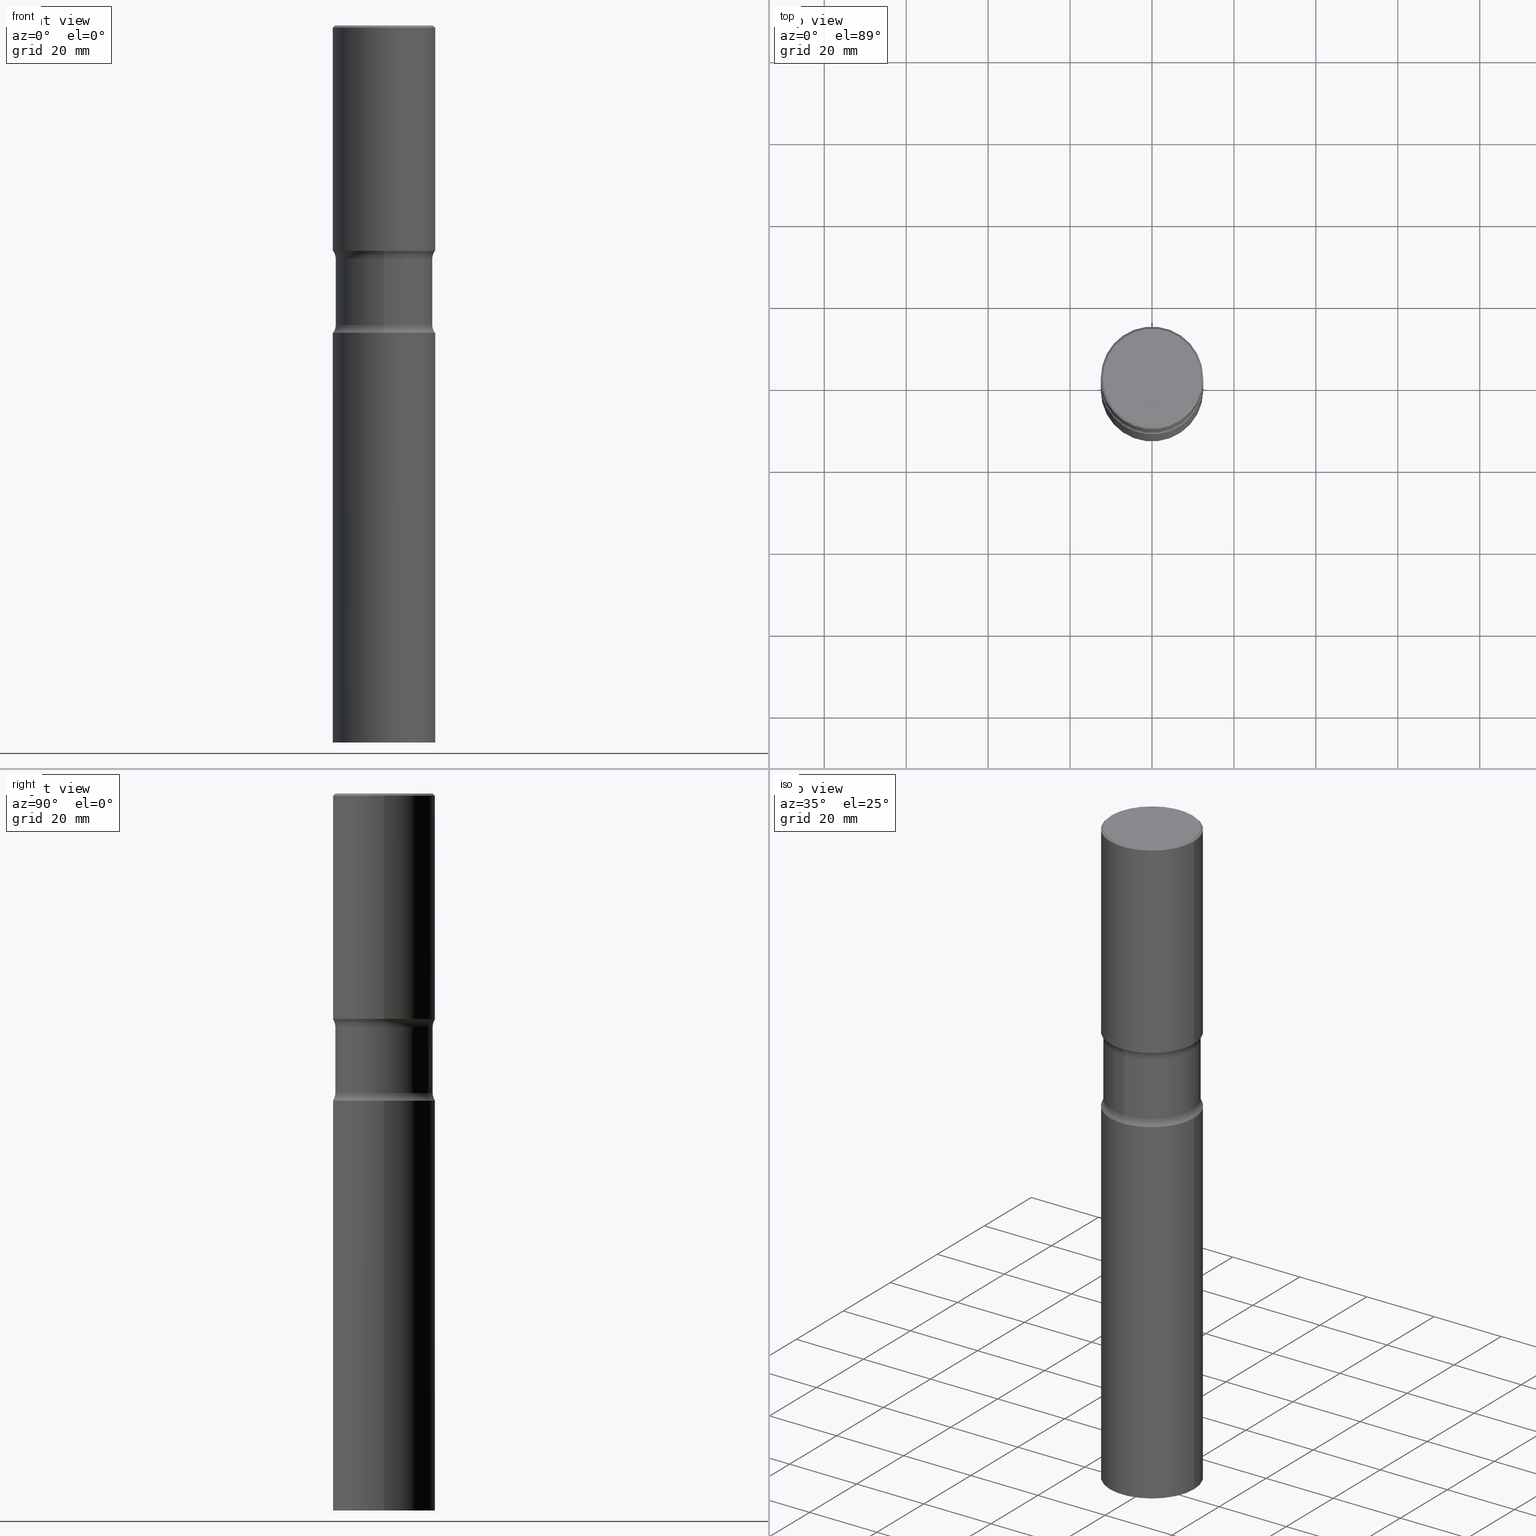
[diagram: canonical four-view strip — front | top / right | iso, engineering-drawing reading convention]
A machine part, canonical four-view strip (front | top / right | iso — engineering-drawing reading convention). The complete STEP part file that produces these views, byte-faithful:
ISO-10303-21;
HEADER;
FILE_DESCRIPTION (( 'STEP AP203' ),
    '1' );
FILE_NAME ('44639.STEP',
    '2024-03-11T13:39:34',
    ( '' ),
    ( '' ),
    'SwSTEP 2.0',
    'SolidWorks 2023',
    '' );
FILE_SCHEMA (( 'CONFIG_CONTROL_DESIGN' ));
ENDSEC;

DATA;
#1 = DIRECTION ( 'NONE',  ( 1.000000000000000000, -6.982962677686265922E-15, 4.876176775795935793E-29 ) ) ;
#2 = EDGE_LOOP ( 'NONE', ( #315, #161, #84, #457 ) ) ;
#3 = DIRECTION ( 'NONE',  ( 2.481809406732894494E-29, -3.439439530480224815E-15, -1.000000000000000000 ) ) ;
#4 = ORIENTED_EDGE ( 'NONE', *, *, #462, .F. ) ;
#5 = CIRCLE ( 'NONE', #156, 0.4674999999999999156 ) ;
#6 = CC_DESIGN_APPROVAL ( #419, ( #292 ) ) ;
#7 = EDGE_CURVE ( 'NONE', #229, #498, #294, .T. ) ;
#8 = CALENDAR_DATE ( 2024, 11, 3 ) ;
#9 = CARTESIAN_POINT ( 'NONE',  ( 7.038716931627038310E-29, -1.004942232508467898E-14, -2.878268949423747003 ) ) ;
#10 = ORIENTED_EDGE ( 'NONE', *, *, #401, .F. ) ;
#11 = FACE_OUTER_BOUND ( 'NONE', #429, .T. ) ;
#12 = EDGE_LOOP ( 'NONE', ( #258, #406, #135, #4 ) ) ;
#13 = APPROVAL_ROLE ( '' ) ;
#14 = DIRECTION ( 'NONE',  ( 2.438088387897960049E-29, -3.491481338843145188E-15, -1.000000000000000000 ) ) ;
#15 = ORIENTED_EDGE ( 'NONE', *, *, #306, .F. ) ;
#16 = AXIS2_PLACEMENT_3D ( 'NONE', #82, #323, #474 ) ;
#17 = DIRECTION ( 'NONE',  ( -1.000000000000000000, 6.982962677686265922E-15, 0.000000000000000000 ) ) ;
#18 = ORIENTED_EDGE ( 'NONE', *, *, #160, .F. ) ;
#19 = EDGE_CURVE ( 'NONE', #288, #395, #403, .T. ) ;
#20 = EDGE_LOOP ( 'NONE', ( #484, #300, #505, #389 ) ) ;
#21 = DIRECTION ( 'NONE',  ( 2.481809406732894494E-29, -3.439439530480224815E-15, -1.000000000000000000 ) ) ;
#22 = AXIS2_PLACEMENT_3D ( 'NONE', #146, #66, #303 ) ;
#23 = AXIS2_PLACEMENT_3D ( 'NONE', #9, #443, #50 ) ;
#24 = EDGE_CURVE ( 'NONE', #30, #199, #215, .T. ) ;
#25 = ORIENTED_EDGE ( 'NONE', *, *, #19, .T. ) ;
#26 = FACE_OUTER_BOUND ( 'NONE', #280, .T. ) ;
#27 = DIRECTION ( 'NONE',  ( 0.000000000000000000, 0.000000000000000000, 1.000000000000000000 ) ) ;
#28 = ORIENTED_EDGE ( 'NONE', *, *, #202, .F. ) ;
#29 = DIRECTION ( 'NONE',  ( -2.445468806185136597E-29, 3.491481338843145583E-15, 1.000000000000000000 ) ) ;
#30 = VERTEX_POINT ( 'NONE', #58 ) ;
#31 = DIRECTION ( 'NONE',  ( 1.000000000000000000, -6.982962677686265922E-15, 4.876006802227162976E-29 ) ) ;
#32 = EDGE_CURVE ( 'NONE', #386, #347, #125, .T. ) ;
#33 = CONICAL_SURFACE ( 'NONE', #234, 0.4921499999999997543, 0.7853981633974485010 ) ;
#34 = DIRECTION ( 'NONE',  ( -2.445468806185136597E-29, 3.491481338843145583E-15, 1.000000000000000000 ) ) ;
#35 = ORIENTED_EDGE ( 'NONE', *, *, #242, .F. ) ;
#36 = CARTESIAN_POINT ( 'NONE',  ( 0.4921499999999997543, -3.446223716380121166E-15, -0.02000000000000010797 ) ) ;
#37 = MANIFOLD_SOLID_BREP ( 'Body-Move/Copy2[4]', #351 ) ;
#38 = DIRECTION ( 'NONE',  ( 6.982962677686265922E-15, 1.000000000000000000, -3.330506545156066257E-15 ) ) ;
#39 = AXIS2_PLACEMENT_3D ( 'NONE', #488, #142, #107 ) ;
#40 = TOROIDAL_SURFACE ( 'NONE', #23, 0.5925000000000001377, 0.1249999999999998057 ) ;
#41 = CARTESIAN_POINT ( 'NONE',  ( 3.264535051818400211E-15, 0.4674999999999900346, -2.878268949423748779 ) ) ;
#42 = DATE_AND_TIME ( #317, #424 ) ;
#43 = ORIENTED_EDGE ( 'NONE', *, *, #121, .T. ) ;
#44 = DIRECTION ( 'NONE',  ( 6.982962677686266711E-15, 1.000000000000000000, -3.506115072082477581E-15 ) ) ;
#45 = PERSON_AND_ORGANIZATION_ROLE ( 'design_supplier' ) ;
#46 = PERSON_AND_ORGANIZATION ( #324, #133 ) ;
#47 = DIRECTION ( 'NONE',  ( 6.982962677686265922E-15, 1.000000000000000000, -3.330506545156066257E-15 ) ) ;
#48 = VECTOR ( 'NONE', #181, 39.37007874015748143 ) ;
#49 = VECTOR ( 'NONE', #252, 39.37007874015748143 ) ;
#50 = DIRECTION ( 'NONE',  ( 6.982962677686266711E-15, 1.000000000000000000, -3.439439530480224815E-15 ) ) ;
#51 = ORIENTED_EDGE ( 'NONE', *, *, #462, .T. ) ;
#52 = ADVANCED_FACE ( 'NONE', ( #182 ), #108, .F. ) ;
#53 = CARTESIAN_POINT ( 'NONE',  ( 1.684879098085435385E-28, -2.405560812836150510E-14, -6.889800000000000146 ) ) ;
#54 = CARTESIAN_POINT ( 'NONE',  ( -0.4921499999999999764, 3.496936074043332897E-15, -2.420853904668951509E-29 ) ) ;
#55 = CIRCLE ( 'NONE', #440, 0.1249999999999998335 ) ;
#56 = DIRECTION ( 'NONE',  ( 0.7071067811865476838, -7.319954787623257623E-15, -0.7071067811865473507 ) ) ;
#57 = CIRCLE ( 'NONE', #495, 0.4675000000000000822 ) ;
#58 = CARTESIAN_POINT ( 'NONE',  ( 0.4721499999999996255, -3.342703923013973791E-15, 1.280553747032445131E-17 ) ) ;
#59 = LINE ( 'NONE', #267, #139 ) ;
#60 = DIRECTION ( 'NONE',  ( 6.982962677686266711E-15, 1.000000000000000000, -3.439439530480224815E-15 ) ) ;
#61 = AXIS2_PLACEMENT_3D ( 'NONE', #127, #425, #348 ) ;
#62 = CIRCLE ( 'NONE', #311, 0.4921499999999999764 ) ;
#63 = ADVANCED_FACE ( 'NONE', ( #193 ), #223, .T. ) ;
#64 = ORIENTED_EDGE ( 'NONE', *, *, #209, .F. ) ;
#65 = FACE_OUTER_BOUND ( 'NONE', #170, .T. ) ;
#66 = DIRECTION ( 'NONE',  ( -2.445468806185136597E-29, 3.491481338843145583E-15, 1.000000000000000000 ) ) ;
#67 = CC_DESIGN_PERSON_AND_ORGANIZATION_ASSIGNMENT ( #459, #183, ( #334 ) ) ;
#68 = DIRECTION ( 'NONE',  ( -2.445468806185136597E-29, 3.491481338843145583E-15, 1.000000000000000000 ) ) ;
#69 = VECTOR ( 'NONE', #318, 39.37007874015748143 ) ;
#70 = AXIS2_PLACEMENT_3D ( 'NONE', #95, #246, #483 ) ;
#71 = CARTESIAN_POINT ( 'NONE',  ( 7.220980290903469061E-29, -1.030964609733603695E-14, -2.952799999999998981 ) ) ;
#72 = CARTESIAN_POINT ( 'NONE',  ( 7.220980290903469061E-29, -1.030964609733603695E-14, -2.952799999999998981 ) ) ;
#73 = EDGE_CURVE ( 'NONE', #329, #498, #299, .T. ) ;
#74 = DIRECTION ( 'NONE',  ( 2.481809406732894494E-29, -3.439439530480224815E-15, -1.000000000000000000 ) ) ;
#75 = CIRCLE ( 'NONE', #174, 0.4921499999999999764 ) ;
#76 = ORIENTED_EDGE ( 'NONE', *, *, #257, .F. ) ;
#77 = PLANE ( 'NONE',  #88 ) ;
#78 = ORIENTED_EDGE ( 'NONE', *, *, #497, .T. ) ;
#79 = DIRECTION ( 'NONE',  ( -2.445468806185136597E-29, 3.491481338843145583E-15, 1.000000000000000000 ) ) ;
#80 = EDGE_CURVE ( 'NONE', #386, #148, #59, .T. ) ;
#81 = COORDINATED_UNIVERSAL_TIME_OFFSET ( 5, 0, .BEHIND. ) ;
#82 = CARTESIAN_POINT ( 'NONE',  ( 5.266803564041986331E-29, -7.601431411035906786E-15, -2.165399999999998659 ) ) ;
#83 = PRODUCT_RELATED_PRODUCT_CATEGORY ( 'detail', '', ( #334 ) ) ;
#84 = ORIENTED_EDGE ( 'NONE', *, *, #73, .T. ) ;
#85 = COORDINATED_UNIVERSAL_TIME_OFFSET ( 5, 0, .BEHIND. ) ;
#86 = AXIS2_PLACEMENT_3D ( 'NONE', #245, #124, #44 ) ;
#87 = PLANE ( 'NONE',  #157 ) ;
#88 = AXIS2_PLACEMENT_3D ( 'NONE', #243, #364, #217 ) ;
#89 = EDGE_CURVE ( 'NONE', #395, #444, #464, .T. ) ;
#90 = PERSON_AND_ORGANIZATION ( #324, #133 ) ;
#91 = CARTESIAN_POINT ( 'NONE',  ( 3.297005828269567997E-15, 0.4721499999999996255, -1.642100145399639275E-15 ) ) ;
#92 = ORIENTED_EDGE ( 'NONE', *, *, #80, .F. ) ;
#93 =( NAMED_UNIT ( * ) PLANE_ANGLE_UNIT ( ) SI_UNIT ( $, .RADIAN. ) );
#94 = EDGE_LOOP ( 'NONE', ( #433, #25, #35, #278 ) ) ;
#95 = CARTESIAN_POINT ( 'NONE',  ( 5.429990530737551426E-29, -7.888973663223912222E-15, -2.239931050576251970 ) ) ;
#96 = CIRCLE ( 'NONE', #504, 0.4921499999999999764 ) ;
#97 = CARTESIAN_POINT ( 'NONE',  ( -0.4921499999999998098, 3.496936074043331714E-15, -2.420853904668950949E-29 ) ) ;
#98 = VECTOR ( 'NONE', #476, 39.37007874015748143 ) ;
#99 = EDGE_LOOP ( 'NONE', ( #92, #126, #78, #10 ) ) ;
#100 = PRODUCT_DEFINITION_SHAPE ( 'NONE', 'NONE',  #292 ) ;
#101 = EDGE_CURVE ( 'NONE', #498, #199, #447, .T. ) ;
#102 = ADVANCED_FACE ( 'NONE', ( #460 ), #255, .F. ) ;
#103 = DIRECTION ( 'NONE',  ( -2.445468806185136597E-29, 3.491481338843145583E-15, 1.000000000000000000 ) ) ;
#104 = CARTESIAN_POINT ( 'NONE',  ( 7.038716931627038310E-29, -1.004942232508467898E-14, -2.878268949423747003 ) ) ;
#105 = ADVANCED_FACE ( 'NONE', ( #26 ), #453, .T. ) ;
#106 = EDGE_LOOP ( 'NONE', ( #28, #312, #211, #413 ) ) ;
#107 = DIRECTION ( 'NONE',  ( -1.000000000000000000, 6.982962677686265922E-15, -4.876176775795935793E-29 ) ) ;
#108 = TOROIDAL_SURFACE ( 'NONE', #394, 0.5925000000000000266, 0.1250000000000000555 ) ;
#109 = AXIS2_PLACEMENT_3D ( 'NONE', #91, #14, #132 ) ;
#110 = ORIENTED_EDGE ( 'NONE', *, *, #362, .T. ) ;
#111 = FACE_OUTER_BOUND ( 'NONE', #12, .T. ) ;
#112 = APPLICATION_CONTEXT ( 'configuration controlled 3d designs of mechanical parts and assemblies' ) ;
#113 = CARTESIAN_POINT ( 'NONE',  ( 4.890937612370299433E-31, -6.982962677686328587E-17, -0.02000000000000010797 ) ) ;
#114 = ORIENTED_EDGE ( 'NONE', *, *, #197, .T. ) ;
#115 = CARTESIAN_POINT ( 'NONE',  ( 4.890937612370299433E-31, -6.982962677686328587E-17, -0.02000000000000010797 ) ) ;
#116 = VECTOR ( 'NONE', #410, 39.37007874015748143 ) ;
#117 = CIRCLE ( 'NONE', #454, 0.4921499999999997543 ) ;
#118 = CC_DESIGN_APPROVAL ( #478, ( #416 ) ) ;
#119 = EDGE_LOOP ( 'NONE', ( #162, #205 ) ) ;
#120 = DIRECTION ( 'NONE',  ( 1.000000000000000000, -6.982962677686265922E-15, 0.000000000000000000 ) ) ;
#121 = EDGE_CURVE ( 'NONE', #247, #452, #147, .T. ) ;
#122 = DIRECTION ( 'NONE',  ( 2.481809406732894494E-29, -3.439439530480224815E-15, -1.000000000000000000 ) ) ;
#123 = ADVANCED_FACE ( 'NONE', ( #231 ), #188, .T. ) ;
#124 = DIRECTION ( 'NONE',  ( 2.481809406732894494E-29, -3.439439530480224815E-15, -1.000000000000000000 ) ) ;
#125 = CIRCLE ( 'NONE', #472, 0.1250000000000000278 ) ;
#126 = ORIENTED_EDGE ( 'NONE', *, *, #202, .T. ) ;
#127 = CARTESIAN_POINT ( 'NONE',  ( 5.295418152913293224E-29, -7.560453691130944267E-15, -2.165399999999999103 ) ) ;
#128 = APPROVAL_DATE_TIME ( #282, #478 ) ;
#129 = PLANE ( 'NONE',  #109 ) ;
#130 = CARTESIAN_POINT ( 'NONE',  ( -0.4921499999999999764, -1.368569103880543813E-14, -2.952799999999998981 ) ) ;
#131 = CALENDAR_DATE ( 2024, 11, 3 ) ;
#132 = DIRECTION ( 'NONE',  ( -1.000000000000000000, 6.982962677686265922E-15, -4.876176775795935793E-29 ) ) ;
#133 = ORGANIZATION ( 'UNSPECIFIED', 'UNSPECIFIED', '' ) ;
#134 =( LENGTH_UNIT ( ) NAMED_UNIT ( * ) SI_UNIT ( $, .METRE. ) );
#135 = ORIENTED_EDGE ( 'NONE', *, *, #289, .F. ) ;
#136 = CARTESIAN_POINT ( 'NONE',  ( 7.220980290903469061E-29, -1.030964609733603695E-14, -2.952799999999998981 ) ) ;
#137 = ORIENTED_EDGE ( 'NONE', *, *, #451, .F. ) ;
#138 = EDGE_CURVE ( 'NONE', #145, #148, #55, .T. ) ;
#139 = VECTOR ( 'NONE', #496, 39.37007874015748143 ) ;
#140 = DIRECTION ( 'NONE',  ( 1.000000000000000000, -6.860497997771530774E-15, 4.841436207964478439E-29 ) ) ;
#141 = CIRCLE ( 'NONE', #195, 0.4921499999999999764 ) ;
#142 = DIRECTION ( 'NONE',  ( 2.438088387897960049E-29, -3.491481338843145188E-15, -1.000000000000000000 ) ) ;
#143 = EDGE_LOOP ( 'NONE', ( #254, #341, #378, #110 ) ) ;
#144 = DIRECTION ( 'NONE',  ( 1.000000000000000000, -6.982962677686265922E-15, 4.876176775795935793E-29 ) ) ;
#145 = VERTEX_POINT ( 'NONE', #296 ) ;
#146 = CARTESIAN_POINT ( 'NONE',  ( 7.220980290903469061E-29, -1.030964609733603695E-14, -2.952799999999998981 ) ) ;
#147 = CIRCLE ( 'NONE', #216, 0.1250000000000000278 ) ;
#148 = VERTEX_POINT ( 'NONE', #380 ) ;
#149 = DIRECTION ( 'NONE',  ( 1.000000000000000000, -6.982962677686265922E-15, 4.876176775795935793E-29 ) ) ;
#150 = EDGE_LOOP ( 'NONE', ( #15, #480, #470, #64 ) ) ;
#151 = DIRECTION ( 'NONE',  ( 6.982962677686266711E-15, 1.000000000000000000, -3.506115072082477581E-15 ) ) ;
#152 = APPROVAL_ROLE ( '' ) ;
#153 = ORIENTED_EDGE ( 'NONE', *, *, #497, .F. ) ;
#154 = APPLICATION_CONTEXT ( 'configuration controlled 3d designs of mechanical parts and assemblies' ) ;
#155 = FACE_OUTER_BOUND ( 'NONE', #2, .T. ) ;
#156 = AXIS2_PLACEMENT_3D ( 'NONE', #507, #74, #151 ) ;
#157 = AXIS2_PLACEMENT_3D ( 'NONE', #136, #179, #285 ) ;
#158 = APPROVAL ( #435, 'UNSPECIFIED' ) ;
#159 = FACE_OUTER_BOUND ( 'NONE', #392, .T. ) ;
#160 = EDGE_CURVE ( 'NONE', #229, #333, #75, .T. ) ;
#161 = ORIENTED_EDGE ( 'NONE', *, *, #197, .F. ) ;
#162 = ORIENTED_EDGE ( 'NONE', *, *, #242, .T. ) ;
#163 = DIRECTION ( 'NONE',  ( 6.982962677686265922E-15, 1.000000000000000000, -3.506115072082476398E-15 ) ) ;
#164 = PERSON_AND_ORGANIZATION ( #324, #133 ) ;
#165 = CARTESIAN_POINT ( 'NONE',  ( 4.890937612370299433E-31, -6.982962677686328587E-17, -0.02000000000000010797 ) ) ;
#166 = AXIS2_PLACEMENT_3D ( 'NONE', #422, #68, #373 ) ;
#167 = FACE_OUTER_BOUND ( 'NONE', #106, .T. ) ;
#168 = DATE_AND_TIME ( #8, #343 ) ;
#169 = DIRECTION ( 'NONE',  ( 2.445468806185136597E-29, -3.491481338843145583E-15, -1.000000000000000000 ) ) ;
#170 = EDGE_LOOP ( 'NONE', ( #76, #238 ) ) ;
#171 = CARTESIAN_POINT ( 'NONE',  ( 1.684879098085435385E-28, -2.405560812836150510E-14, -6.889800000000000146 ) ) ;
#172 = ADVANCED_FACE ( 'NONE', ( #111 ), #490, .T. ) ;
#173 = ORIENTED_EDGE ( 'NONE', *, *, #306, .T. ) ;
#174 = AXIS2_PLACEMENT_3D ( 'NONE', #344, #34, #298 ) ;
#175 = CARTESIAN_POINT ( 'NONE',  ( 0.4921499999999998098, -3.436665081823294593E-15, 2.399810400207968762E-29 ) ) ;
#176 = CC_DESIGN_APPROVAL ( #158, ( #397 ) ) ;
#177 = ORIENTED_EDGE ( 'NONE', *, *, #493, .T. ) ;
#178 = ADVANCED_FACE ( 'NONE', ( #185 ), #338, .T. ) ;
#179 = DIRECTION ( 'NONE',  ( 2.438088387897960049E-29, -3.491481338843145188E-15, -1.000000000000000000 ) ) ;
#180 = ADVANCED_BREP_SHAPE_REPRESENTATION ( '44639', ( #369, #214, #37, #432 ), #330 ) ;
#181 = DIRECTION ( 'NONE',  ( -2.445468806185136877E-29, 3.491481338843145188E-15, 1.000000000000000000 ) ) ;
#182 = FACE_OUTER_BOUND ( 'NONE', #400, .T. ) ;
#183 = PERSON_AND_ORGANIZATION_ROLE ( 'design_owner' ) ;
#184 = AXIS2_PLACEMENT_3D ( 'NONE', #270, #276, #120 ) ;
#185 = FACE_OUTER_BOUND ( 'NONE', #274, .T. ) ;
#186 = APPROVAL_PERSON_ORGANIZATION ( #164, #158, #249 ) ;
#187 = ADVANCED_FACE ( 'NONE', ( #65 ), #375, .F. ) ;
#188 = CYLINDRICAL_SURFACE ( 'NONE', #335, 0.4675000000000000266 ) ;
#189 = ORIENTED_EDGE ( 'NONE', *, *, #80, .T. ) ;
#190 = CC_DESIGN_PERSON_AND_ORGANIZATION_ASSIGNMENT ( #327, #398, ( #397 ) ) ;
#191 = DIRECTION ( 'NONE',  ( -2.445468806185136597E-29, 3.491481338843145583E-15, 1.000000000000000000 ) ) ;
#192 = ORIENTED_EDGE ( 'NONE', *, *, #493, .F. ) ;
#193 = FACE_OUTER_BOUND ( 'NONE', #94, .T. ) ;
#194 = CIRCLE ( 'NONE', #86, 0.4674999999999999156 ) ;
#195 = AXIS2_PLACEMENT_3D ( 'NONE', #331, #210, #363 ) ;
#196 = CARTESIAN_POINT ( 'NONE',  ( -0.4921499999999997543, 3.366835455046430901E-15, -0.02000000000000010797 ) ) ;
#197 = EDGE_CURVE ( 'NONE', #329, #30, #365, .T. ) ;
#198 = CARTESIAN_POINT ( 'NONE',  ( 5.266803564041986331E-29, -7.601431411035906786E-15, -2.165399999999998659 ) ) ;
#199 = VERTEX_POINT ( 'NONE', #36 ) ;
#200 = PLANE ( 'NONE',  #61 ) ;
#201 = CARTESIAN_POINT ( 'NONE',  ( 7.036008428489641815E-29, -1.005330105573585586E-14, -2.878268949423747003 ) ) ;
#202 = EDGE_CURVE ( 'NONE', #386, #247, #5, .T. ) ;
#203 = APPROVAL_STATUS ( 'not_yet_approved' ) ;
#204 = LINE ( 'NONE', #346, #69 ) ;
#205 = ORIENTED_EDGE ( 'NONE', *, *, #89, .T. ) ;
#206 = DIRECTION ( 'NONE',  ( 1.000000000000000000, -6.982962677686265922E-15, 0.000000000000000000 ) ) ;
#207 = CALENDAR_DATE ( 2024, 11, 3 ) ;
#208 = LOCAL_TIME ( 9, 39, 34.00000000000000000, #354 ) ;
#209 = EDGE_CURVE ( 'NONE', #277, #259, #494, .T. ) ;
#210 = DIRECTION ( 'NONE',  ( 2.481809406732894494E-29, -3.439439530480224815E-15, -1.000000000000000000 ) ) ;
#211 = ORIENTED_EDGE ( 'NONE', *, *, #409, .T. ) ;
#212 = CC_DESIGN_DATE_AND_TIME_ASSIGNMENT ( #253, #360, ( #397 ) ) ;
#213 = FACE_OUTER_BOUND ( 'NONE', #119, .T. ) ;
#214 = MANIFOLD_SOLID_BREP ( 'Body-Move/Copy2[2]', #271 ) ;
#215 = LINE ( 'NONE', #445, #336 ) ;
#216 = AXIS2_PLACEMENT_3D ( 'NONE', #450, #305, #269 ) ;
#217 = DIRECTION ( 'NONE',  ( -6.982962677686265922E-15, -1.000000000000000000, 3.439439530480224815E-15 ) ) ;
#218 = DIRECTION ( 'NONE',  ( 1.000000000000000000, -6.860497997771530774E-15, 4.841436207964478439E-29 ) ) ;
#219 = CC_DESIGN_PERSON_AND_ORGANIZATION_ASSIGNMENT ( #388, #473, ( #416 ) ) ;
#220 = APPLICATION_PROTOCOL_DEFINITION ( 'international standard', 'config_control_design', 1994, #154 ) ;
#221 = DIRECTION ( 'NONE',  ( 1.000000000000000000, -6.982962677686265922E-15, 0.000000000000000000 ) ) ;
#222 = CIRCLE ( 'NONE', #372, 0.4921499999999999764 ) ;
#223 = CYLINDRICAL_SURFACE ( 'NONE', #166, 0.4921499999999999764 ) ;
#224 = EDGE_CURVE ( 'NONE', #247, #386, #194, .T. ) ;
#225 = CC_DESIGN_PERSON_AND_ORGANIZATION_ASSIGNMENT ( #46, #235, ( #292 ) ) ;
#226 = ORIENTED_EDGE ( 'NONE', *, *, #485, .T. ) ;
#227 = CARTESIAN_POINT ( 'NONE',  ( 0.000000000000000000, 0.000000000000000000, 0.000000000000000000 ) ) ;
#228 =( NAMED_UNIT ( * ) SI_UNIT ( $, .STERADIAN. ) SOLID_ANGLE_UNIT ( ) );
#229 = VERTEX_POINT ( 'NONE', #426 ) ;
#230 = DIRECTION ( 'NONE',  ( -2.445468806185136597E-29, 3.491481338843145583E-15, 1.000000000000000000 ) ) ;
#231 = FACE_OUTER_BOUND ( 'NONE', #355, .T. ) ;
#232 = EDGE_CURVE ( 'NONE', #383, #444, #204, .T. ) ;
#233 = AXIS2_PLACEMENT_3D ( 'NONE', #391, #307, #1 ) ;
#234 = AXIS2_PLACEMENT_3D ( 'NONE', #115, #239, #466 ) ;
#235 = PERSON_AND_ORGANIZATION_ROLE ( 'creator' ) ;
#236 = DIRECTION ( 'NONE',  ( -1.000000000000000000, 6.982962677686265922E-15, -4.883557194083112901E-29 ) ) ;
#237 = DIRECTION ( 'NONE',  ( -2.445468806185136597E-29, 3.491481338843145583E-15, 1.000000000000000000 ) ) ;
#238 = ORIENTED_EDGE ( 'NONE', *, *, #409, .F. ) ;
#239 = DIRECTION ( 'NONE',  ( 2.445468806185136597E-29, -3.491481338843145583E-15, -1.000000000000000000 ) ) ;
#240 = CIRCLE ( 'NONE', #342, 0.4721499999999996255 ) ;
#241 = ORIENTED_EDGE ( 'NONE', *, *, #19, .F. ) ;
#242 = EDGE_CURVE ( 'NONE', #444, #395, #222, .T. ) ;
#243 = CARTESIAN_POINT ( 'NONE',  ( 7.220980290903469061E-29, -1.030964609733603695E-14, -2.952799999999998981 ) ) ;
#244 = DATE_TIME_ROLE ( 'creation_date' ) ;
#245 = CARTESIAN_POINT ( 'NONE',  ( 5.451775426455818062E-29, -7.857776452636094191E-15, -2.239931050576251970 ) ) ;
#246 = DIRECTION ( 'NONE',  ( 2.481809406732894494E-29, -3.439439530480224815E-15, -1.000000000000000000 ) ) ;
#247 = VERTEX_POINT ( 'NONE', #381 ) ;
#248 = CLOSED_SHELL ( 'NONE', ( #63, #304, #441, #178 ) ) ;
#249 = APPROVAL_ROLE ( '' ) ;
#250 = FACE_OUTER_BOUND ( 'NONE', #150, .T. ) ;
#251 = CC_DESIGN_PERSON_AND_ORGANIZATION_ASSIGNMENT ( #90, #45, ( #416 ) ) ;
#252 = DIRECTION ( 'NONE',  ( 2.481809406732894774E-29, -3.439439530480224815E-15, -1.000000000000000000 ) ) ;
#253 = DATE_AND_TIME ( #357, #481 ) ;
#254 = ORIENTED_EDGE ( 'NONE', *, *, #138, .F. ) ;
#255 = TOROIDAL_SURFACE ( 'NONE', #319, 0.5925000000000001377, 0.1249999999999998057 ) ;
#256 = LENGTH_MEASURE_WITH_UNIT ( LENGTH_MEASURE( 0.02539999999999999897 ), #134 );
#257 = EDGE_CURVE ( 'NONE', #452, #347, #96, .T. ) ;
#258 = ORIENTED_EDGE ( 'NONE', *, *, #321, .T. ) ;
#259 = VERTEX_POINT ( 'NONE', #41 ) ;
#260 = DIRECTION ( 'NONE',  ( 6.860497997771531562E-15, 1.000000000000000000, 0.000000000000000000 ) ) ;
#261 = DIRECTION ( 'NONE',  ( 2.481809406732894494E-29, -3.439439530480224815E-15, -1.000000000000000000 ) ) ;
#262 = ADVANCED_FACE ( 'NONE', ( #499 ), #200, .F. ) ;
#263 = AXIS2_PLACEMENT_3D ( 'NONE', #227, #191, #144 ) ;
#264 = CIRCLE ( 'NONE', #465, 0.4675000000000000822 ) ;
#265 = CARTESIAN_POINT ( 'NONE',  ( -4.064845063679561895E-15, -0.5925000000000101297, -2.878268949423744782 ) ) ;
#266 = ORIENTED_EDGE ( 'NONE', *, *, #7, .F. ) ;
#267 = CARTESIAN_POINT ( 'NONE',  ( -3.207282813958021053E-15, -0.4675000000000238409, -6.889799999999998370 ) ) ;
#268 = PERSON_AND_ORGANIZATION ( #324, #133 ) ;
#269 = DIRECTION ( 'NONE',  ( -6.982962677686269077E-15, -1.000000000000000000, 0.000000000000000000 ) ) ;
#270 = CARTESIAN_POINT ( 'NONE',  ( 5.295418152913293224E-29, -7.560453691130944267E-15, -2.165399999999999103 ) ) ;
#271 = CLOSED_SHELL ( 'NONE', ( #172, #418, #314, #489, #262, #105 ) ) ;
#272 = ORIENTED_EDGE ( 'NONE', *, *, #362, .F. ) ;
#273 = CIRCLE ( 'NONE', #184, 0.4921499999999999764 ) ;
#274 = EDGE_LOOP ( 'NONE', ( #137, #192 ) ) ;
#275 = DIRECTION ( 'NONE',  ( -2.445468806185136597E-29, 3.491481338843145583E-15, 1.000000000000000000 ) ) ;
#276 = DIRECTION ( 'NONE',  ( -2.445468806185136597E-29, 3.491481338843145583E-15, 1.000000000000000000 ) ) ;
#277 = VERTEX_POINT ( 'NONE', #503 ) ;
#278 = ORIENTED_EDGE ( 'NONE', *, *, #232, .F. ) ;
#279 = CARTESIAN_POINT ( 'NONE',  ( -0.4721499999999996255, 3.331920641657999646E-15, 1.280553747027805488E-17 ) ) ;
#280 = EDGE_LOOP ( 'NONE', ( #266, #427, #51, #421 ) ) ;
#281 = DIRECTION ( 'NONE',  ( 1.000000000000000000, -6.982962677686265922E-15, 0.000000000000000000 ) ) ;
#282 = DATE_AND_TIME ( #207, #208 ) ;
#283 = ADVANCED_FACE ( 'NONE', ( #387 ), #471, .T. ) ;
#284 = CARTESIAN_POINT ( 'NONE',  ( 0.4921499999999999764, -2.749227321018479930E-14, -6.889800000000000146 ) ) ;
#285 = DIRECTION ( 'NONE',  ( -1.000000000000000000, 6.982962677686265922E-15, -4.876176775795935793E-29 ) ) ;
#286 = TOROIDAL_SURFACE ( 'NONE', #70, 0.5925000000000000266, 0.1250000000000000555 ) ;
#287 = CARTESIAN_POINT ( 'NONE',  ( 4.890937612370299433E-31, -6.982962677686328587E-17, -0.02000000000000010797 ) ) ;
#288 = VERTEX_POINT ( 'NONE', #313 ) ;
#289 = EDGE_CURVE ( 'NONE', #199, #498, #117, .T. ) ;
#290 = SECURITY_CLASSIFICATION_LEVEL ( 'unclassified' ) ;
#291 =( CONVERSION_BASED_UNIT ( 'INCH', #256 ) LENGTH_UNIT ( ) NAMED_UNIT ( #436 ) );
#292 = PRODUCT_DEFINITION ( 'UNKNOWN', '', #416, #500 ) ;
#293 = LINE ( 'NONE', #175, #98 ) ;
#294 = LINE ( 'NONE', #97, #116 ) ;
#295 = VECTOR ( 'NONE', #377, 39.37007874015748143 ) ;
#296 = CARTESIAN_POINT ( 'NONE',  ( -3.376394089603185292E-15, -0.4921500000000100794, -2.952799999999997649 ) ) ;
#297 = EDGE_CURVE ( 'NONE', #30, #329, #240, .T. ) ;
#298 = DIRECTION ( 'NONE',  ( 1.000000000000000000, -6.982962677686265922E-15, 0.000000000000000000 ) ) ;
#299 = LINE ( 'NONE', #196, #295 ) ;
#300 = ORIENTED_EDGE ( 'NONE', *, *, #24, .T. ) ;
#301 = CIRCLE ( 'NONE', #396, 0.4921499999999999764 ) ;
#302 = AXIS2_PLACEMENT_3D ( 'NONE', #287, #169, #17 ) ;
#303 = DIRECTION ( 'NONE',  ( 1.000000000000000000, -6.982962677686265922E-15, 0.000000000000000000 ) ) ;
#304 = ADVANCED_FACE ( 'NONE', ( #159 ), #467, .T. ) ;
#305 = DIRECTION ( 'NONE',  ( -1.000000000000000000, 6.982962677686265922E-15, -4.883557194083112901E-29 ) ) ;
#306 = EDGE_CURVE ( 'NONE', #145, #277, #301, .T. ) ;
#307 = DIRECTION ( 'NONE',  ( -2.445468806185136597E-29, 3.491481338843145583E-15, 1.000000000000000000 ) ) ;
#308 = COORDINATED_UNIVERSAL_TIME_OFFSET ( 5, 0, .BEHIND. ) ;
#309 = DIRECTION ( 'NONE',  ( 1.000000000000000000, -6.982962677686265922E-15, 0.000000000000000000 ) ) ;
#310 = AXIS2_PLACEMENT_3D ( 'NONE', #420, #230, #31 ) ;
#311 = AXIS2_PLACEMENT_3D ( 'NONE', #171, #408, #405 ) ;
#312 = ORIENTED_EDGE ( 'NONE', *, *, #32, .T. ) ;
#313 = CARTESIAN_POINT ( 'NONE',  ( -0.4921499999999999764, -1.368569103880543813E-14, -6.889800000000000146 ) ) ;
#314 = ADVANCED_FACE ( 'NONE', ( #155 ), #33, .T. ) ;
#315 = ORIENTED_EDGE ( 'NONE', *, *, #24, .F. ) ;
#316 = FACE_OUTER_BOUND ( 'NONE', #414, .T. ) ;
#317 = CALENDAR_DATE ( 2024, 11, 3 ) ;
#318 = DIRECTION ( 'NONE',  ( -2.445468806185136877E-29, 3.491481338843145188E-15, 1.000000000000000000 ) ) ;
#319 = AXIS2_PLACEMENT_3D ( 'NONE', #104, #261, #60 ) ;
#320 = CIRCLE ( 'NONE', #16, 0.4921499999999999764 ) ;
#321 = EDGE_CURVE ( 'NONE', #333, #229, #273, .T. ) ;
#322 = COORDINATED_UNIVERSAL_TIME_OFFSET ( 5, 0, .BEHIND. ) ;
#323 = DIRECTION ( 'NONE',  ( 2.481809406732894494E-29, -3.439439530480224815E-15, -1.000000000000000000 ) ) ;
#324 = PERSON ( 'UNSPECIFIED', 'UNSPECIFIED', 'UNSPECIFIED', ('UNSPECIFIED'), ('UNSPECIFIED'), ('UNSPECIFIED') ) ;
#325 = APPROVAL_DATE_TIME ( #168, #158 ) ;
#326 = FACE_OUTER_BOUND ( 'NONE', #20, .T. ) ;
#327 = PERSON_AND_ORGANIZATION ( #324, #133 ) ;
#328 = CARTESIAN_POINT ( 'NONE',  ( 3.264535051818499213E-15, 0.4674999999999761569, -6.889800000000000146 ) ) ;
#329 = VERTEX_POINT ( 'NONE', #279 ) ;
#330 =( GEOMETRIC_REPRESENTATION_CONTEXT ( 3 ) GLOBAL_UNCERTAINTY_ASSIGNED_CONTEXT ( ( #376 ) ) GLOBAL_UNIT_ASSIGNED_CONTEXT ( ( #291, #93, #228 ) ) REPRESENTATION_CONTEXT ( 'NONE', 'WORKASPACE' ) );
#331 = CARTESIAN_POINT ( 'NONE',  ( 7.220980290903469061E-29, -1.030964609733603695E-14, -2.952799999999998981 ) ) ;
#332 = DIRECTION ( 'NONE',  ( 6.982962677686265922E-15, 1.000000000000000000, -3.506115072082476398E-15 ) ) ;
#333 = VERTEX_POINT ( 'NONE', #428 ) ;
#334 = PRODUCT ( '44639', '44639', '', ( #370 ) ) ;
#335 = AXIS2_PLACEMENT_3D ( 'NONE', #339, #21, #487 ) ;
#336 = VECTOR ( 'NONE', #56, 39.37007874015748143 ) ;
#337 = CONICAL_SURFACE ( 'NONE', #302, 0.4921499999999997543, 0.7853981633974485010 ) ;
#338 = PLANE ( 'NONE',  #39 ) ;
#339 = CARTESIAN_POINT ( 'NONE',  ( 1.699186392521087599E-28, -2.385071952883668146E-14, -6.889799999999999258 ) ) ;
#340 = CARTESIAN_POINT ( 'NONE',  ( 6.134756169668655007E-29, -6.358473878984120950E-15, -2.165399999999999103 ) ) ;
#341 = ORIENTED_EDGE ( 'NONE', *, *, #485, .F. ) ;
#342 = AXIS2_PLACEMENT_3D ( 'NONE', #434, #79, #384 ) ;
#343 = LOCAL_TIME ( 9, 39, 34.00000000000000000, #81 ) ;
#344 = CARTESIAN_POINT ( 'NONE',  ( 5.295418152913293224E-29, -7.560453691130944267E-15, -2.165399999999999103 ) ) ;
#345 = CC_DESIGN_DATE_AND_TIME_ASSIGNMENT ( #42, #244, ( #292 ) ) ;
#346 = CARTESIAN_POINT ( 'NONE',  ( 0.4921499999999999764, -3.436665081823295777E-15, 2.399810400207969603E-29 ) ) ;
#347 = VERTEX_POINT ( 'NONE', #430 ) ;
#348 = DIRECTION ( 'NONE',  ( 1.000000000000000000, -6.982962677686265922E-15, 4.876176775795935793E-29 ) ) ;
#349 = EDGE_LOOP ( 'NONE', ( #411, #18 ) ) ;
#350 = DIRECTION ( 'NONE',  ( 6.982962677686265922E-15, 1.000000000000000000, -2.337410048054984397E-15 ) ) ;
#351 = CLOSED_SHELL ( 'NONE', ( #123, #469, #508, #52, #187, #374, #102, #283 ) ) ;
#352 = AXIS2_PLACEMENT_3D ( 'NONE', #53, #477, #206 ) ;
#353 = DIRECTION ( 'NONE',  ( 2.481809406732894494E-29, -3.439439530480224815E-15, -1.000000000000000000 ) ) ;
#354 = COORDINATED_UNIVERSAL_TIME_OFFSET ( 5, 0, .BEHIND. ) ;
#355 = EDGE_LOOP ( 'NONE', ( #438, #189, #272, #153 ) ) ;
#356 = CARTESIAN_POINT ( 'NONE',  ( 1.699186392521087599E-28, -2.385071952883668146E-14, -6.889799999999999258 ) ) ;
#357 = CALENDAR_DATE ( 2024, 11, 3 ) ;
#358 = ORIENTED_EDGE ( 'NONE', *, *, #32, .F. ) ;
#359 = LOCAL_TIME ( 9, 39, 34.00000000000000000, #308 ) ;
#360 = DATE_TIME_ROLE ( 'classification_date' ) ;
#361 = ORIENTED_EDGE ( 'NONE', *, *, #257, .T. ) ;
#362 = EDGE_CURVE ( 'NONE', #259, #148, #57, .T. ) ;
#363 = DIRECTION ( 'NONE',  ( 6.982962677686265922E-15, 1.000000000000000000, -3.330506545156066257E-15 ) ) ;
#364 = DIRECTION ( 'NONE',  ( -2.481809406732893933E-29, 3.439439530480224815E-15, 1.000000000000000000 ) ) ;
#365 = CIRCLE ( 'NONE', #310, 0.4721499999999996255 ) ;
#366 = CARTESIAN_POINT ( 'NONE',  ( 7.036008428489641815E-29, -1.005330105573585586E-14, -2.878268949423747003 ) ) ;
#367 = CARTESIAN_POINT ( 'NONE',  ( -4.064845063679578461E-15, -0.5925000000000079092, -2.239931050576250193 ) ) ;
#368 = DIRECTION ( 'NONE',  ( 6.860497997771532351E-15, 1.000000000000000000, 0.000000000000000000 ) ) ;
#369 = MANIFOLD_SOLID_BREP ( 'Body-Move/Copy2[1]', #248 ) ;
#370 = MECHANICAL_CONTEXT ( 'NONE', #154, 'mechanical' ) ;
#371 = CARTESIAN_POINT ( 'NONE',  ( 0.000000000000000000, 0.000000000000000000, 0.000000000000000000 ) ) ;
#372 = AXIS2_PLACEMENT_3D ( 'NONE', #72, #237, #309 ) ;
#373 = DIRECTION ( 'NONE',  ( 1.000000000000000000, -6.982962677686265922E-15, 4.876176775795935793E-29 ) ) ;
#374 = ADVANCED_FACE ( 'NONE', ( #316 ), #77, .F. ) ;
#375 = PLANE ( 'NONE',  #407 ) ;
#376 = UNCERTAINTY_MEASURE_WITH_UNIT (LENGTH_MEASURE( 1.000000000000000082E-05 ), #291, 'distance_accuracy_value', 'NONE');
#377 = DIRECTION ( 'NONE',  ( -0.7071067811865476838, 2.468850131082258638E-15, -0.7071067811865473507 ) ) ;
#378 = ORIENTED_EDGE ( 'NONE', *, *, #209, .T. ) ;
#379 = AXIS2_PLACEMENT_3D ( 'NONE', #356, #3, #350 ) ;
#380 = CARTESIAN_POINT ( 'NONE',  ( -3.291838451780652477E-15, -0.4675000000000101297, -2.878268949423745227 ) ) ;
#381 = CARTESIAN_POINT ( 'NONE',  ( 3.264535051818383251E-15, 0.4674999999999920886, -2.239931050576253746 ) ) ;
#382 = DIRECTION ( 'NONE',  ( 2.481809406732894494E-29, -3.439439530480224815E-15, -1.000000000000000000 ) ) ;
#383 = VERTEX_POINT ( 'NONE', #284 ) ;
#384 = DIRECTION ( 'NONE',  ( 1.000000000000000000, -6.982962677686265922E-15, 4.876006802227162976E-29 ) ) ;
#385 = APPROVAL_PERSON_ORGANIZATION ( #482, #478, #13 ) ;
#386 = VERTEX_POINT ( 'NONE', #399 ) ;
#387 = FACE_OUTER_BOUND ( 'NONE', #99, .T. ) ;
#388 = PERSON_AND_ORGANIZATION ( #324, #133 ) ;
#389 = ORIENTED_EDGE ( 'NONE', *, *, #73, .F. ) ;
#390 = APPROVAL_DATE_TIME ( #404, #419 ) ;
#391 = CARTESIAN_POINT ( 'NONE',  ( 0.000000000000000000, 0.000000000000000000, 0.000000000000000000 ) ) ;
#392 = EDGE_LOOP ( 'NONE', ( #241, #177, #491, #446 ) ) ;
#393 = CARTESIAN_POINT ( 'NONE',  ( 3.436665081823349025E-15, 0.4921499999999924269, -2.165400000000000436 ) ) ;
#394 = AXIS2_PLACEMENT_3D ( 'NONE', #449, #412, #415 ) ;
#395 = VERTEX_POINT ( 'NONE', #130 ) ;
#396 = AXIS2_PLACEMENT_3D ( 'NONE', #71, #122, #47 ) ;
#397 = SECURITY_CLASSIFICATION ( '', '', #290 ) ;
#398 = PERSON_AND_ORGANIZATION_ROLE ( 'classification_officer' ) ;
#399 = CARTESIAN_POINT ( 'NONE',  ( -3.291838451780671409E-15, -0.4675000000000077982, -2.239931050576250193 ) ) ;
#400 = EDGE_LOOP ( 'NONE', ( #358, #461, #43, #361 ) ) ;
#401 = EDGE_CURVE ( 'NONE', #148, #259, #264, .T. ) ;
#402 = CARTESIAN_POINT ( 'NONE',  ( -0.4921499999999997543, 3.366835455046430901E-15, -0.02000000000000010797 ) ) ;
#403 = LINE ( 'NONE', #54, #48 ) ;
#404 = DATE_AND_TIME ( #131, #359 ) ;
#405 = DIRECTION ( 'NONE',  ( 1.000000000000000000, -6.982962677686265922E-15, 0.000000000000000000 ) ) ;
#406 = ORIENTED_EDGE ( 'NONE', *, *, #7, .T. ) ;
#407 = AXIS2_PLACEMENT_3D ( 'NONE', #340, #492, #458 ) ;
#408 = DIRECTION ( 'NONE',  ( -2.445468806185136597E-29, 3.491481338843145583E-15, 1.000000000000000000 ) ) ;
#409 = EDGE_CURVE ( 'NONE', #347, #452, #320, .T. ) ;
#410 = DIRECTION ( 'NONE',  ( -2.445468806185136877E-29, 3.491481338843145188E-15, 1.000000000000000000 ) ) ;
#411 = ORIENTED_EDGE ( 'NONE', *, *, #321, .F. ) ;
#412 = DIRECTION ( 'NONE',  ( 2.481809406732894494E-29, -3.439439530480224815E-15, -1.000000000000000000 ) ) ;
#413 = ORIENTED_EDGE ( 'NONE', *, *, #121, .F. ) ;
#414 = EDGE_LOOP ( 'NONE', ( #226, #173 ) ) ;
#415 = DIRECTION ( 'NONE',  ( 6.982962677686266711E-15, 1.000000000000000000, -3.439439530480224815E-15 ) ) ;
#416 = PRODUCT_DEFINITION_FORMATION_WITH_SPECIFIED_SOURCE ( 'ANY', '', #334, .NOT_KNOWN. ) ;
#417 = APPLICATION_PROTOCOL_DEFINITION ( 'international standard', 'config_control_design', 1994, #112 ) ;
#418 = ADVANCED_FACE ( 'NONE', ( #326 ), #337, .T. ) ;
#419 = APPROVAL ( #501, 'UNSPECIFIED' ) ;
#420 = CARTESIAN_POINT ( 'NONE',  ( -3.131554243005659264E-46, 4.471029511141341874E-32, 1.280553747030123384E-17 ) ) ;
#421 = ORIENTED_EDGE ( 'NONE', *, *, #101, .F. ) ;
#422 = CARTESIAN_POINT ( 'NONE',  ( 0.000000000000000000, 0.000000000000000000, 0.000000000000000000 ) ) ;
#423 = AXIS2_PLACEMENT_3D ( 'NONE', #468, #236, #463 ) ;
#424 = LOCAL_TIME ( 9, 39, 34.00000000000000000, #322 ) ;
#425 = DIRECTION ( 'NONE',  ( -2.438088387897960049E-29, 3.491481338843145188E-15, 1.000000000000000000 ) ) ;
#426 = CARTESIAN_POINT ( 'NONE',  ( -0.4921499999999999764, -3.182055849105702942E-16, -2.165399999999999103 ) ) ;
#427 = ORIENTED_EDGE ( 'NONE', *, *, #160, .T. ) ;
#428 = CARTESIAN_POINT ( 'NONE',  ( 0.4921499999999999764, -1.099711877295424004E-14, -2.165399999999999103 ) ) ;
#429 = EDGE_LOOP ( 'NONE', ( #114, #502 ) ) ;
#430 = CARTESIAN_POINT ( 'NONE',  ( -3.376394089603206197E-15, -0.4921500000000076369, -2.165399999999996883 ) ) ;
#431 = AXIS2_PLACEMENT_3D ( 'NONE', #113, #29, #221 ) ;
#432 = AXIS2_PLACEMENT_3D ( 'NONE', #448, #27, #456 ) ;
#433 = ORIENTED_EDGE ( 'NONE', *, *, #451, .T. ) ;
#434 = CARTESIAN_POINT ( 'NONE',  ( -3.131554243005659264E-46, 4.471029511141341874E-32, 1.280553747030123384E-17 ) ) ;
#435 = APPROVAL_STATUS ( 'not_yet_approved' ) ;
#436 = DIMENSIONAL_EXPONENTS ( 1.000000000000000000, 0.000000000000000000, 0.000000000000000000, 0.000000000000000000, 0.000000000000000000, 0.000000000000000000, 0.000000000000000000 ) ;
#437 = LINE ( 'NONE', #328, #49 ) ;
#438 = ORIENTED_EDGE ( 'NONE', *, *, #224, .T. ) ;
#439 = DIRECTION ( 'NONE',  ( 2.481809406732894494E-29, -3.439439530480224815E-15, -1.000000000000000000 ) ) ;
#440 = AXIS2_PLACEMENT_3D ( 'NONE', #265, #140, #260 ) ;
#441 = ADVANCED_FACE ( 'NONE', ( #213 ), #87, .F. ) ;
#442 = CIRCLE ( 'NONE', #352, 0.4921499999999999764 ) ;
#443 = DIRECTION ( 'NONE',  ( 2.481809406732894494E-29, -3.439439530480224815E-15, -1.000000000000000000 ) ) ;
#444 = VERTEX_POINT ( 'NONE', #486 ) ;
#445 = CARTESIAN_POINT ( 'NONE',  ( 0.4921499999999997543, -3.446223716380121166E-15, -0.02000000000000010797 ) ) ;
#446 = ORIENTED_EDGE ( 'NONE', *, *, #89, .F. ) ;
#447 = CIRCLE ( 'NONE', #431, 0.4921499999999997543 ) ;
#448 = CARTESIAN_POINT ( 'NONE',  ( 0.000000000000000000, 0.000000000000000000, 0.000000000000000000 ) ) ;
#449 = CARTESIAN_POINT ( 'NONE',  ( 5.429990530737551426E-29, -7.888973663223912222E-15, -2.239931050576251970 ) ) ;
#450 = CARTESIAN_POINT ( 'NONE',  ( 4.137405386529166984E-15, 0.5924999999999921441, -2.239931050576253746 ) ) ;
#451 = EDGE_CURVE ( 'NONE', #383, #288, #442, .T. ) ;
#452 = VERTEX_POINT ( 'NONE', #393 ) ;
#453 = CYLINDRICAL_SURFACE ( 'NONE', #479, 0.4921499999999998098 ) ;
#454 = AXIS2_PLACEMENT_3D ( 'NONE', #165, #275, #281 ) ;
#455 = CC_DESIGN_SECURITY_CLASSIFICATION ( #397, ( #416 ) ) ;
#456 = DIRECTION ( 'NONE',  ( 1.000000000000000000, 0.000000000000000000, 0.000000000000000000 ) ) ;
#457 = ORIENTED_EDGE ( 'NONE', *, *, #101, .T. ) ;
#458 = DIRECTION ( 'NONE',  ( 6.982962677686265922E-15, 1.000000000000000000, -3.439439530480224815E-15 ) ) ;
#459 = PERSON_AND_ORGANIZATION ( #324, #133 ) ;
#460 = FACE_OUTER_BOUND ( 'NONE', #143, .T. ) ;
#461 = ORIENTED_EDGE ( 'NONE', *, *, #224, .F. ) ;
#462 = EDGE_CURVE ( 'NONE', #333, #199, #293, .T. ) ;
#463 = DIRECTION ( 'NONE',  ( -6.982962677686264344E-15, -1.000000000000000000, 0.000000000000000000 ) ) ;
#464 = CIRCLE ( 'NONE', #22, 0.4921499999999999764 ) ;
#465 = AXIS2_PLACEMENT_3D ( 'NONE', #366, #439, #332 ) ;
#466 = DIRECTION ( 'NONE',  ( -1.000000000000000000, 6.982962677686265922E-15, 0.000000000000000000 ) ) ;
#467 = CYLINDRICAL_SURFACE ( 'NONE', #233, 0.4921499999999999764 ) ;
#468 = CARTESIAN_POINT ( 'NONE',  ( 4.137405386529183550E-15, 0.5924999999999900346, -2.878268949423749223 ) ) ;
#469 = ADVANCED_FACE ( 'NONE', ( #250 ), #40, .F. ) ;
#470 = ORIENTED_EDGE ( 'NONE', *, *, #401, .T. ) ;
#471 = CYLINDRICAL_SURFACE ( 'NONE', #379, 0.4675000000000000266 ) ;
#472 = AXIS2_PLACEMENT_3D ( 'NONE', #367, #218, #368 ) ;
#473 = PERSON_AND_ORGANIZATION_ROLE ( 'creator' ) ;
#474 = DIRECTION ( 'NONE',  ( 6.982962677686265922E-15, 1.000000000000000000, -3.330506545156066257E-15 ) ) ;
#475 = SHAPE_DEFINITION_REPRESENTATION ( #100, #180 ) ;
#476 = DIRECTION ( 'NONE',  ( -2.445468806185136877E-29, 3.491481338843145188E-15, 1.000000000000000000 ) ) ;
#477 = DIRECTION ( 'NONE',  ( -2.445468806185136597E-29, 3.491481338843145583E-15, 1.000000000000000000 ) ) ;
#478 = APPROVAL ( #203, 'UNSPECIFIED' ) ;
#479 = AXIS2_PLACEMENT_3D ( 'NONE', #371, #103, #149 ) ;
#480 = ORIENTED_EDGE ( 'NONE', *, *, #138, .T. ) ;
#481 = LOCAL_TIME ( 9, 39, 34.00000000000000000, #85 ) ;
#482 = PERSON_AND_ORGANIZATION ( #324, #133 ) ;
#483 = DIRECTION ( 'NONE',  ( 6.982962677686266711E-15, 1.000000000000000000, -3.439439530480224815E-15 ) ) ;
#484 = ORIENTED_EDGE ( 'NONE', *, *, #297, .F. ) ;
#485 = EDGE_CURVE ( 'NONE', #277, #145, #141, .T. ) ;
#486 = CARTESIAN_POINT ( 'NONE',  ( 0.4921499999999999764, -1.374631117915933273E-14, -2.952799999999998981 ) ) ;
#487 = DIRECTION ( 'NONE',  ( 6.982962677686265922E-15, 1.000000000000000000, -2.337410048054984397E-15 ) ) ;
#488 = CARTESIAN_POINT ( 'NONE',  ( 6.166476271625392928E-29, -3.935329079157235124E-14, -6.889800000000000146 ) ) ;
#489 = ADVANCED_FACE ( 'NONE', ( #11 ), #129, .F. ) ;
#490 = CYLINDRICAL_SURFACE ( 'NONE', #263, 0.4921499999999998098 ) ;
#491 = ORIENTED_EDGE ( 'NONE', *, *, #232, .T. ) ;
#492 = DIRECTION ( 'NONE',  ( 2.481809406732893933E-29, -3.439439530480224815E-15, -1.000000000000000000 ) ) ;
#493 = EDGE_CURVE ( 'NONE', #288, #383, #62, .T. ) ;
#494 = CIRCLE ( 'NONE', #423, 0.1249999999999998335 ) ;
#495 = AXIS2_PLACEMENT_3D ( 'NONE', #201, #353, #163 ) ;
#496 = DIRECTION ( 'NONE',  ( 2.481809406732894774E-29, -3.439439530480224815E-15, -1.000000000000000000 ) ) ;
#497 = EDGE_CURVE ( 'NONE', #247, #259, #437, .T. ) ;
#498 = VERTEX_POINT ( 'NONE', #402 ) ;
#499 = FACE_OUTER_BOUND ( 'NONE', #349, .T. ) ;
#500 = DESIGN_CONTEXT ( 'detailed design', #112, 'design' ) ;
#501 = APPROVAL_STATUS ( 'not_yet_approved' ) ;
#502 = ORIENTED_EDGE ( 'NONE', *, *, #297, .T. ) ;
#503 = CARTESIAN_POINT ( 'NONE',  ( 3.436665081823367169E-15, 0.4921499999999895403, -2.952800000000000757 ) ) ;
#504 = AXIS2_PLACEMENT_3D ( 'NONE', #198, #382, #38 ) ;
#505 = ORIENTED_EDGE ( 'NONE', *, *, #289, .T. ) ;
#506 = APPROVAL_PERSON_ORGANIZATION ( #268, #419, #152 ) ;
#507 = CARTESIAN_POINT ( 'NONE',  ( 5.451775426455818062E-29, -7.857776452636094191E-15, -2.239931050576251970 ) ) ;
#508 = ADVANCED_FACE ( 'NONE', ( #167 ), #286, .F. ) ;
ENDSEC;
END-ISO-10303-21;
